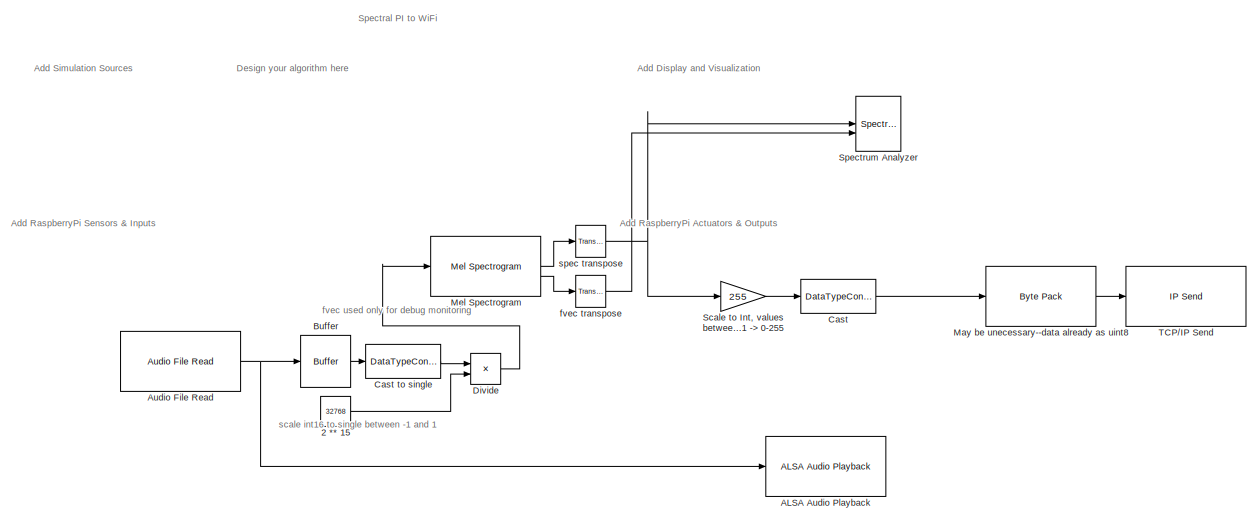
[diagram: root canvas - part 1/2, center side, full height]
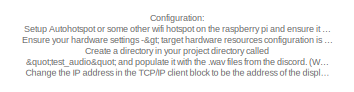
[diagram: root canvas - part 2/2, top left region]
MODEL slx_05d210dede75
KIND model
CONFIG AbsTol = auto
CONFIG EnableMultiTasking = on
CONFIG FixedStep = auto
CONFIG MaxStep = auto
CONFIG MinStep = auto
CONFIG RelTol = 1e-3
CONFIG SampleTimeConstraint = Unconstrained
CONFIG SolverName = ode45
CONFIG StartTime = 0.0
CONFIG StopTime = 10.0
BLOCK [Constant] 2 ** 15
  Value = 32768
BLOCK [Reference] ALSA Audio Playback  REF=raspberrypiAVlib/ALSA Audio Playback
  SourceBlock = raspberrypiAVlib/ALSA Audio Playback
  SourceType = codertarget.raspi.internal.RaspiALSAAudioPlayback
BLOCK [Reference] Audio File Read  REF=raspberrypiAVlib/Audio File Read
  SourceBlock = raspberrypiAVlib/Audio File Read
  SourceType = codertarget.raspi.internal.RaspiAudioFileRead
BLOCK [Buffer] Buffer
  N = 1024
  OutputFrames = off
BLOCK [DataTypeConversion] Cast
  OutDataTypeStr = uint8
  RndMeth = Nearest
BLOCK [DataTypeConversion] Cast to single
  OutDataTypeStr = single
  RndMeth = Floor
  SaturateOnIntegerOverflow = off
BLOCK [Product] Divide
  Inputs = */
BLOCK [Reference] May be unecessary--data already as uint8  REF=etargetslib/Byte Pack
  LibrarySourceBlock = embeddedtargetslib/Host Communication/Byte Pack
  SourceBlock = etargetslib/Byte Pack
  SourceType = Byte pack
BLOCK [Reference] Mel Spectrogram  REF=audiofeatures/Mel Spectrogram
  SourceBlock = audiofeatures/Mel Spectrogram
  SourceType = Mel Spectrogram
BLOCK [Gain] Scale to Int, values between 0-1 -> 0-255
  Gain = 255
BLOCK [SpectrumAnalyzer] Spectrum Analyzer
  AxesScaling = Manual
  FrequencyScale = Log
  FrequencySpan = Start and stop frequencies
  FrequencyVectorSource = Input port
  GraphicalSettings = {"GraphicalSettings":{"Style":{"BackgroundColor":[0.12941176470588237,0.12941176470588237,0.12941176470588237],"AxesColor":[0.07058823529411765,0.07058823529411765,0.07058823529411765],"LabelsColor":[0.8509803921568627,0.8509803921568627,0.8509803921568627],"PreserveColors":false,"Visible":[true],"LineStyle":["-"],"LineColor":[[1,1,0.06666666666666667]],"LineWidth":[1.5],"Marker":["none"],"FontSiz...<+929ch>
  InputDomain = Frequency
  NumInputPorts = 2
  PlotAsTwoSidedSpectrum = off
  SampleRate = 44.1e3
  SampleRateSource = Property
  ScopeFrameLocation = window
  SpectrumUnits = Auto
  StartFrequency = 20
  StopFrequency = 20e3
  WasSavedAsWebScope = on
  WindowPosition = [1.000000,49.000000,1280.000000,649.000000,]
  YLimits = [0,5]
BLOCK [Reference] TCP//IP Send  REF=raspberrypiNetworklib/TCP//IP Send
  SourceBlock = raspberrypiNetworklib/TCP//IP Send
  SourceType = codertarget.raspi.internal.RaspiTCPSend
BLOCK [Reference] fvec transpose  REF=matrix_library/Transpose
  LibrarySourceBlock = simulink/Matrix\nOperations/Transpose
  SourceBlock = matrix_library/Transpose
  SourceType = Transpose
BLOCK [Reference] spec transpose  REF=matrix_library/Transpose
  LibrarySourceBlock = simulink/Matrix\nOperations/Transpose
  SourceBlock = matrix_library/Transpose
  SourceType = Transpose
ANNOTATION (root): Configuration: Setup Autohotspot or some other wifi hotspot on the raspberry pi and ensure it is running. Ensure your hardware settings -> target hardware resources configuration is correct and that the PI is reachable. Create a directory in your project directory called "test_audio" and populate it with the .wav files from the discord. (We can't share these files on a public Github). Change the I...<+93ch>
ANNOTATION (root): Add Display and Visualization
ANNOTATION (root): Add RaspberryPi Actuators & Outputs
ANNOTATION (root): Add RaspberryPi Sensors & Inputs
ANNOTATION (root): Add Simulation Sources
ANNOTATION (root): Design your algorithm here
ANNOTATION (root): Spectral PI to WiFi
ANNOTATION (root): fvec used only for debug monitoring
ANNOTATION (root): scale int16 to single between -1 and 1
LINE 2 ** 15:1 -> Divide:2
NET Audio File Read:1 -> ALSA Audio Playback:1, Buffer:1
LINE Buffer:1 -> Cast to single:1
LINE Cast to single:1 -> Divide:1
LINE Cast:1 -> May be unecessary--data already as uint8:1
LINE Divide:1 -> Mel Spectrogram:1
LINE May be unecessary--data already as uint8:1 -> TCP//IP Send:1
LINE Mel Spectrogram:1 -> spec transpose:1
LINE Mel Spectrogram:2 -> fvec transpose:1
LINE Scale to Int, values between 0-1 -> 0-255:1 -> Cast:1
LINE fvec transpose:1 -> Spectrum Analyzer:2
NET spec transpose:1 -> Scale to Int, values between 0-1 -> 0-255:1, Spectrum Analyzer:1
note: NET lines group one-source signal fan-out (src -> all destinations, sorted); 1:1 wires keep LINE
